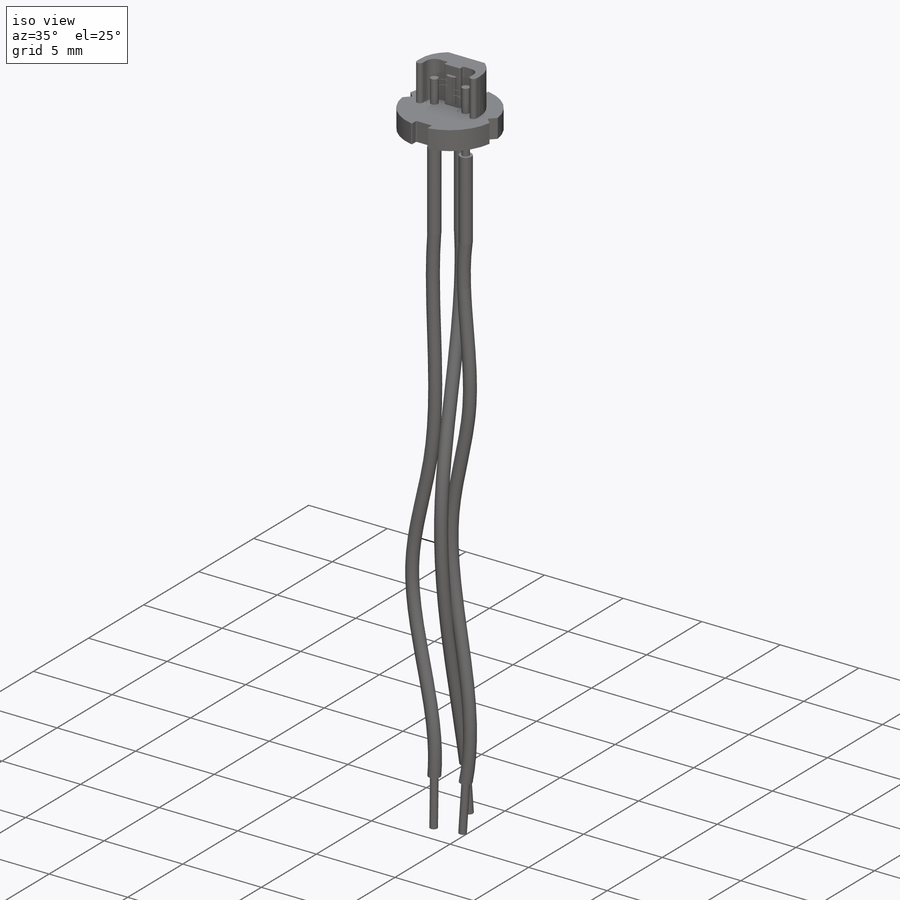
[diagram: iso view]
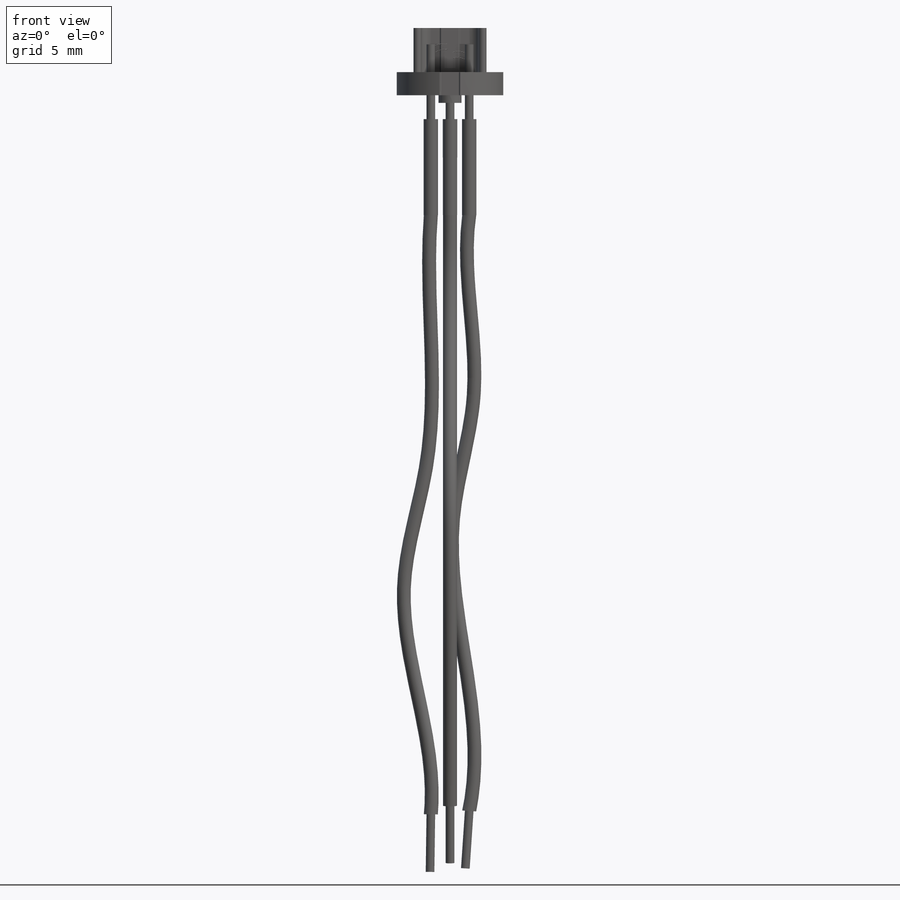
[diagram: front view]
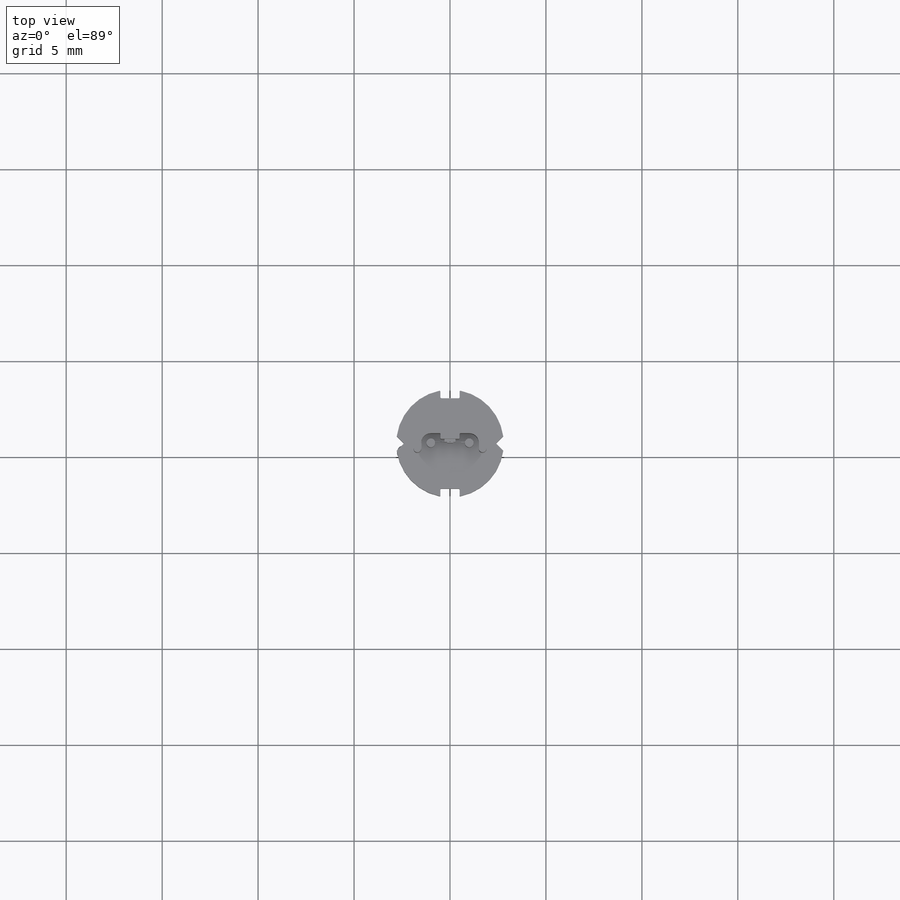
[diagram: top view]
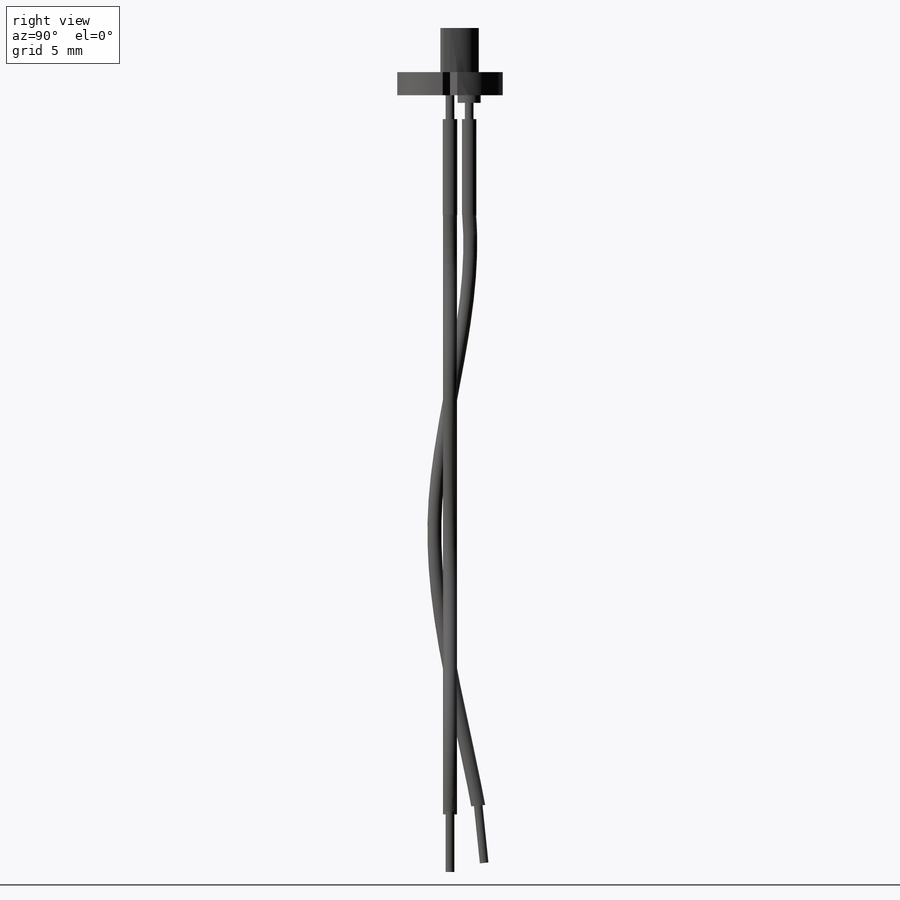
[diagram: right view]
SOLIDWORKS PART (.sldprt)
format: sldprt  version: not decoded by parser v0  size: 1,136,640 bytes
history: native  units: mm
features: sketch x33, extrude x12, sweep x7, cut_extrude x6, fillet x4, material x1 (+13 scaffold rows collapsed)
feature tree (76):
  scaffold x13  (default folders/planes/origin — collapsed)
  material  "Brass"
  sketch  "Sketch1"  dims[c1.D1=5.6mm c1.D6=~0.305075mm c1.D2=0.4mm c1.D3=~0.775956mm c2.D3=45.0deg c2.D2=0.5mm c2.D4=0.4mm c2.D5=~1.415284mm c3.D2=0.4mm c3.D4=0.05mm c3.D5=0.05mm c4.D2=~0.30023mm]
  extrude  "Boss-Extrude1"  Depth=1.2mm
  sketch  "Sketch2"  dims[c1.D1=3.8mm c1.D2=2.0mm c1.D3=0.45mm c1.D4=0.45mm c1.D5=0.45mm c1.D6=1.0mm c1.D7=1.2mm c1.D8=1.0mm c2.D7=1.0mm c2.D9=~2.595786mm c3.D7=~0.695489mm c3.D2=~5.241161mm c3.D9=1.5mm c3.D10=~3.980687mm c4.D7=0.5mm c4.D9=0.3mm c5.D7=~2.706075mm c5.D4=0.3mm c6.D7=~3.718707mm c6.D2=0.05mm c6.D4=0.05mm c7.D7=~1.14492mm c7.D2=~0.450159mm]
  extrude  "Boss-Extrude2"  Depth=2.3mm
  sketch  "Sketch3"
  cut_extrude  "Cut-Extrude1"  Depth=0.85mm
  sketch  "Sketch4"
  cut_extrude  "Cut-Extrude2"  Depth=0.85mm
  sketch  "Sketch5"  dims[D1=1.77mm D2=~6.680476mm]
  extrude  "Boss-Extrude3"  Depth=0.15mm
  sketch  "Sketch6"  dims[D1=0.15mm D2=~3.676736mm]
  extrude  "Boss-Extrude4"  Depth=0.05mm
  sketch  "Sketch7"  dims[c1.D1=2.0mm c1.D2=0.45mm c1.D3=0.45mm c1.D4=0.45mm c2.D2=~9.175103mm]
  extrude  "Boss-Extrude5"  Depth=6.5mm
  sketch  "Sketch8"  dims[D1=1.2mm]
  extrude  "Boss-Extrude6"  Depth=0.4mm
  sketch  "Sketch11"
  sketch  "Sketch12"  dims[D1=0.025mm]
  sweep  "Sweep1"
  sketch  "Sketch13"
  sketch  "Sketch14"  dims[D1=0.025mm]
  sweep  "Sweep2"
  sketch  "Sketch17"
  sketch  "Sketch18"  dims[D1=0.025mm]
  sweep  "Sweep3"
  sketch  "Sketch19"
  sketch  "Sketch20"  dims[D1=0.025mm]
  sweep  "Sweep4"
  sketch  "Sketch21"  dims[D1=~0.517958mm]
  cut_extrude  "Cut-Extrude3"  Depth=1.1mm
  fillet  "Fillet1"  Radius=0.0025mm
  sketch  "Sketch27"  dims[D1=0.9mm D2=0.9mm]
  cut_extrude  "Cut-Extrude7"  Depth=0.025mm
  sketch  "Sketch28"  dims[D1=0.9mm D2=0.9mm]
  cut_extrude  "Cut-Extrude8"  Depth=0.025mm
  sketch  "Sketch29"  dims[D1=~0.556502mm]
  cut_extrude  "Cut-Extrude9"  Depth=10mm
  fillet  "Fillet2"  Radius=0.025mm
  fillet  "Fillet3"  Radius=0.025mm
  fillet  "Fillet4"  Radius=0.025mm
  sketch  "Sketch30"
  extrude  "Boss-Extrude7"  Depth=3mm
  sketch  "Sketch32"  dims[D1=0.0mm]
  sketch  "Sketch33"  dims[D1=0.73mm]
  sweep  "Sweep5"
  sketch  "Sketch34"  dims[D1=0.45mm]
  extrude  "Boss-Extrude8"  Depth=3mm
  sketch  "Sketch35"
  sketch  "Sketch36"  dims[D1=0.73mm]
  sweep  "Sweep6"
  sketch  "Sketch37"  dims[D1=0.45mm]
  extrude  "Boss-Extrude9"  Depth=3mm
  sketch  "Sketch38"
  sketch  "Sketch39"  dims[D1=0.73mm]
  sweep  "Sweep7"
  sketch  "Sketch40"  dims[D1=0.45mm]
  sketch  "Sketch41"  dims[D1=0.75mm D2=0.75mm D3=0.75mm]
  extrude  "Boss-Extrude13"  Depth=3mm
  sketch  "Sketch42"  dims[D1=0.75mm]
  extrude  "Boss-Extrude14"  Depth=2mm
  sketch  "Sketch43"  dims[D1=0.45mm]
  extrude  "Boss-Extrude15"  Depth=3mm
decode coverage: 46 of 62 modeling features carry decoded parameters
note: ~ marks probable driven/reference dimensions
summary: profile_refs inferred from adjacent sketches, not decoded
note: suppression state not decoded; provenance and decode notes live in map.json
